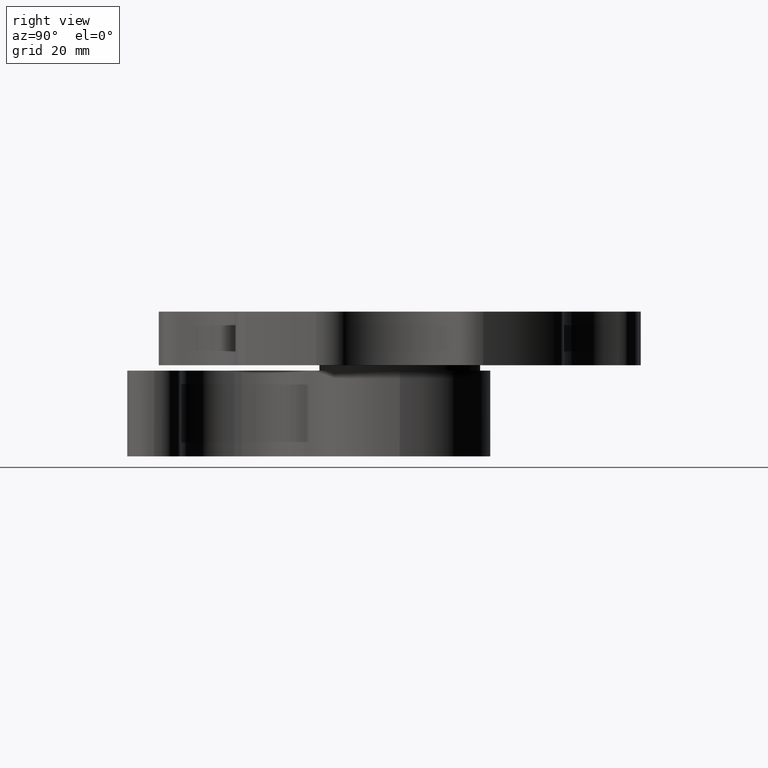
[diagram: clean part render]
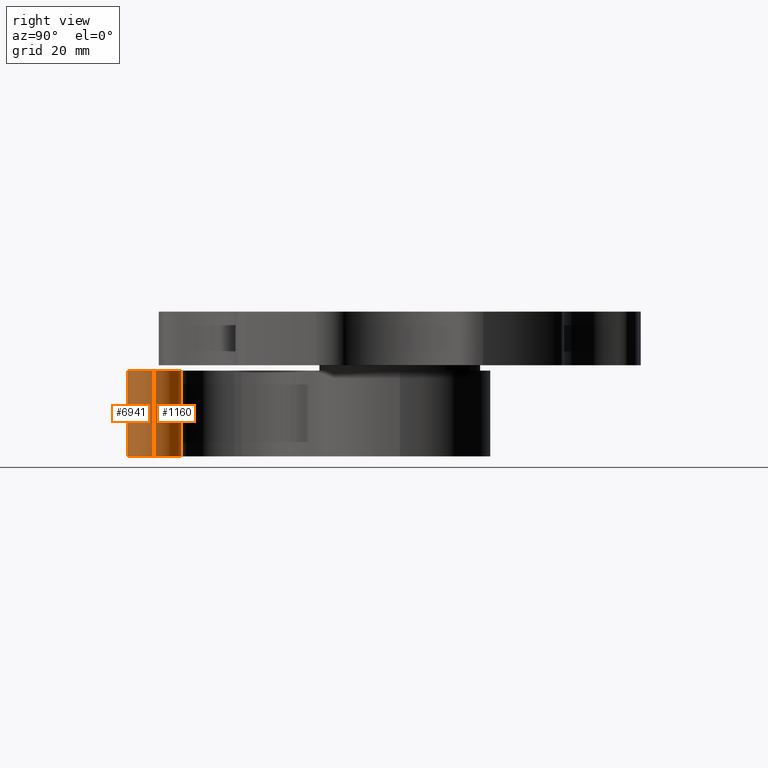
[diagram: same view with one multi-face feature highlighted, each face labeled with its STEP entity id]
A machine part, right view. The highlighted faces form ONE feature: a constant-radius fillet chain: 2 tangent blend faces with common blend radius 5 mm. The faces share edges in the B-rep.
Their STEP definitions:
[1] entity #6941 (Cylinder):
#246 = CARTESIAN_POINT ( 'NONE',  ( 4.199999999999981500, -45.79999999999999000, -16.00000000000000000 ) ) ;
#324 = LINE ( 'NONE', #12340, #12950 ) ;
#997 = DIRECTION ( 'NONE',  ( -0.0000000000000000000, 0.0000000000000000000, 1.000000000000000000 ) ) ;
#1067 = EDGE_CURVE ( 'NONE', #4628, #11674, #324, .T. ) ;
#1396 = CYLINDRICAL_SURFACE ( 'NONE', #5214, 4.999999999999997300 ) ;
#1504 = DIRECTION ( 'NONE',  ( 1.000000000000000000, 0.0000000000000000000, 0.0000000000000000000 ) ) ;
#1958 = CARTESIAN_POINT ( 'NONE',  ( 4.199999999999978000, -50.79999999999997600, -16.00000000000000000 ) ) ;
#2184 = DIRECTION ( 'NONE',  ( 1.000000000000000000, 0.0000000000000000000, 0.0000000000000000000 ) ) ;
#2245 = EDGE_CURVE ( 'NONE', #3911, #13151, #6800, .T. ) ;
#3130 = DIRECTION ( 'NONE',  ( -0.0000000000000000000, 0.0000000000000000000, 1.000000000000000000 ) ) ;
#3404 = AXIS2_PLACEMENT_3D ( 'NONE', #9539, #997, #2184 ) ;
#3911 = VERTEX_POINT ( 'NONE', #1958 ) ;
#4047 = CARTESIAN_POINT ( 'NONE',  ( 4.199999999999981500, -45.79999999999999000, -16.00000000000000000 ) ) ;
#4628 = VERTEX_POINT ( 'NONE', #9700 ) ;
#5214 = AXIS2_PLACEMENT_3D ( 'NONE', #246, #8748, #1504 ) ;
#5919 = ORIENTED_EDGE ( 'NONE', *, *, #1067, .T. ) ;
#6559 = CARTESIAN_POINT ( 'NONE',  ( 4.199999999999978000, -50.79999999999997600, 0.0000000000000000000 ) ) ;
#6652 = CARTESIAN_POINT ( 'NONE',  ( 4.199999999999978000, -50.79999999999997600, -16.00000000000000000 ) ) ;
#6800 = LINE ( 'NONE', #6652, #15492 ) ;
#6941 = ADVANCED_FACE ( 'NONE', ( #13078 ), #1396, .T. ) ;
#7212 = ORIENTED_EDGE ( 'NONE', *, *, #9060, .F. ) ;
#7971 = ORIENTED_EDGE ( 'NONE', *, *, #13697, .T. ) ;
#8748 = DIRECTION ( 'NONE',  ( 0.0000000000000000000, 0.0000000000000000000, 1.000000000000000000 ) ) ;
#9060 = EDGE_CURVE ( 'NONE', #13151, #11674, #13580, .T. ) ;
#9539 = CARTESIAN_POINT ( 'NONE',  ( 4.199999999999981500, -45.79999999999999000, 0.0000000000000000000 ) ) ;
#9700 = CARTESIAN_POINT ( 'NONE',  ( 9.199999999999979700, -45.79999999999999000, -16.00000000000000000 ) ) ;
#9771 = DIRECTION ( 'NONE',  ( 0.0000000000000000000, 0.0000000000000000000, 1.000000000000000000 ) ) ;
#10410 = DIRECTION ( 'NONE',  ( 1.000000000000000000, 0.0000000000000000000, 0.0000000000000000000 ) ) ;
#10852 = CARTESIAN_POINT ( 'NONE',  ( 9.199999999999979700, -45.79999999999999000, 0.0000000000000000000 ) ) ;
#11674 = VERTEX_POINT ( 'NONE', #10852 ) ;
#12340 = CARTESIAN_POINT ( 'NONE',  ( 9.199999999999979700, -45.79999999999999000, -16.00000000000000000 ) ) ;
#12556 = AXIS2_PLACEMENT_3D ( 'NONE', #4047, #3130, #10410 ) ;
#12950 = VECTOR ( 'NONE', #9771, 1000.000000000000000 ) ;
#13078 = FACE_OUTER_BOUND ( 'NONE', #14046, .T. ) ;
#13151 = VERTEX_POINT ( 'NONE', #6559 ) ;
#13375 = CIRCLE ( 'NONE', #12556, 4.999999999999997300 ) ;
#13580 = CIRCLE ( 'NONE', #3404, 4.999999999999997300 ) ;
#13697 = EDGE_CURVE ( 'NONE', #3911, #4628, #13375, .T. ) ;
#14046 = EDGE_LOOP ( 'NONE', ( #7971, #5919, #7212, #14615 ) ) ;
#14615 = ORIENTED_EDGE ( 'NONE', *, *, #2245, .F. ) ;
#15095 = DIRECTION ( 'NONE',  ( 0.0000000000000000000, 0.0000000000000000000, 1.000000000000000000 ) ) ;
#15492 = VECTOR ( 'NONE', #15095, 1000.000000000000000 ) ;
[2] entity #1160 (Cylinder):
#324 = LINE ( 'NONE', #12340, #12950 ) ;
#477 = AXIS2_PLACEMENT_3D ( 'NONE', #5836, #10488, #8127 ) ;
#1067 = EDGE_CURVE ( 'NONE', #4628, #11674, #324, .T. ) ;
#1160 = ADVANCED_FACE ( 'NONE', ( #10701 ), #10882, .T. ) ;
#2664 = LINE ( 'NONE', #3985, #15320 ) ;
#3360 = DIRECTION ( 'NONE',  ( 1.000000000000000000, 0.0000000000000000000, 0.0000000000000000000 ) ) ;
#3486 = VERTEX_POINT ( 'NONE', #11509 ) ;
#3781 = DIRECTION ( 'NONE',  ( 0.0000000000000000000, 0.0000000000000000000, 1.000000000000000000 ) ) ;
#3985 = CARTESIAN_POINT ( 'NONE',  ( 4.199999999999978000, -40.79999999999998300, -16.00000000000000000 ) ) ;
#4085 = EDGE_LOOP ( 'NONE', ( #4446, #6790, #5013, #14307 ) ) ;
#4446 = ORIENTED_EDGE ( 'NONE', *, *, #1067, .F. ) ;
#4628 = VERTEX_POINT ( 'NONE', #9700 ) ;
#5013 = ORIENTED_EDGE ( 'NONE', *, *, #12277, .T. ) ;
#5836 = CARTESIAN_POINT ( 'NONE',  ( 4.199999999999981500, -45.79999999999999000, 0.0000000000000000000 ) ) ;
#6178 = CARTESIAN_POINT ( 'NONE',  ( 4.199999999999978000, -40.79999999999998300, -16.00000000000000000 ) ) ;
#6539 = CARTESIAN_POINT ( 'NONE',  ( 4.199999999999981500, -45.79999999999999000, -16.00000000000000000 ) ) ;
#6790 = ORIENTED_EDGE ( 'NONE', *, *, #10775, .T. ) ;
#6853 = CIRCLE ( 'NONE', #10518, 4.999999999999997300 ) ;
#6934 = DIRECTION ( 'NONE',  ( 1.000000000000000000, 0.0000000000000000000, 0.0000000000000000000 ) ) ;
#6986 = CARTESIAN_POINT ( 'NONE',  ( 4.199999999999981500, -45.79999999999999000, -16.00000000000000000 ) ) ;
#8017 = DIRECTION ( 'NONE',  ( 0.0000000000000000000, 0.0000000000000000000, 1.000000000000000000 ) ) ;
#8127 = DIRECTION ( 'NONE',  ( 1.000000000000000000, 0.0000000000000000000, 0.0000000000000000000 ) ) ;
#8178 = AXIS2_PLACEMENT_3D ( 'NONE', #6539, #8017, #3360 ) ;
#8462 = EDGE_CURVE ( 'NONE', #11674, #3486, #11551, .T. ) ;
#9700 = CARTESIAN_POINT ( 'NONE',  ( 9.199999999999979700, -45.79999999999999000, -16.00000000000000000 ) ) ;
#9771 = DIRECTION ( 'NONE',  ( 0.0000000000000000000, 0.0000000000000000000, 1.000000000000000000 ) ) ;
#10488 = DIRECTION ( 'NONE',  ( -0.0000000000000000000, 0.0000000000000000000, 1.000000000000000000 ) ) ;
#10518 = AXIS2_PLACEMENT_3D ( 'NONE', #6986, #12940, #6934 ) ;
#10701 = FACE_OUTER_BOUND ( 'NONE', #4085, .T. ) ;
#10775 = EDGE_CURVE ( 'NONE', #4628, #12557, #6853, .T. ) ;
#10852 = CARTESIAN_POINT ( 'NONE',  ( 9.199999999999979700, -45.79999999999999000, 0.0000000000000000000 ) ) ;
#10882 = CYLINDRICAL_SURFACE ( 'NONE', #8178, 4.999999999999997300 ) ;
#11509 = CARTESIAN_POINT ( 'NONE',  ( 4.199999999999978000, -40.79999999999998300, 0.0000000000000000000 ) ) ;
#11551 = CIRCLE ( 'NONE', #477, 4.999999999999997300 ) ;
#11674 = VERTEX_POINT ( 'NONE', #10852 ) ;
#12277 = EDGE_CURVE ( 'NONE', #12557, #3486, #2664, .T. ) ;
#12340 = CARTESIAN_POINT ( 'NONE',  ( 9.199999999999979700, -45.79999999999999000, -16.00000000000000000 ) ) ;
#12557 = VERTEX_POINT ( 'NONE', #6178 ) ;
#12940 = DIRECTION ( 'NONE',  ( -0.0000000000000000000, 0.0000000000000000000, 1.000000000000000000 ) ) ;
#12950 = VECTOR ( 'NONE', #9771, 1000.000000000000000 ) ;
#14307 = ORIENTED_EDGE ( 'NONE', *, *, #8462, .F. ) ;
#15320 = VECTOR ( 'NONE', #3781, 1000.000000000000000 ) ;